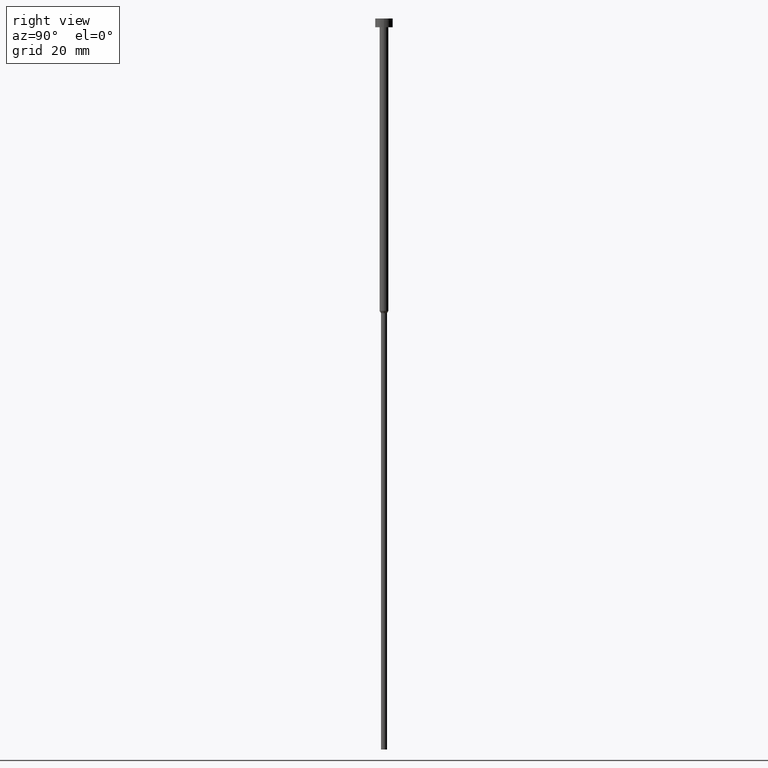
[diagram: clean part render]
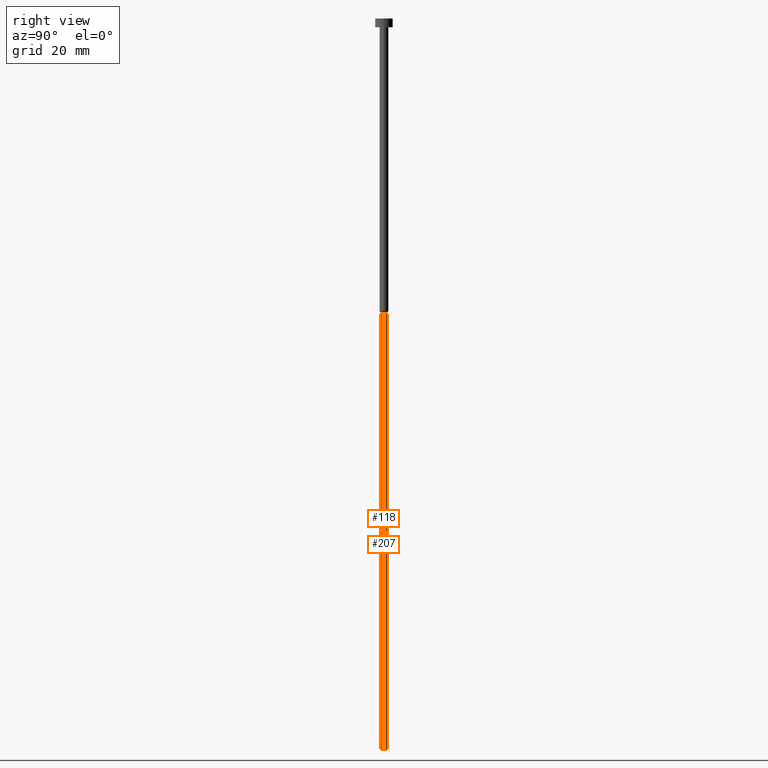
[diagram: same view with one multi-face feature highlighted, each face labeled with its STEP entity id]
A machine part, right view. The highlighted faces form ONE feature: a constant-radius fillet chain: 2 tangent blend faces with common blend radius 1.05 mm. The faces share edges in the B-rep.
Their STEP definitions:
[1] entity #207 (Cylinder):
#17 = VERTEX_POINT ( 'NONE', #215 ) ;
#38 = CARTESIAN_POINT ( 'NONE',  ( -1.050000000000000044, 1.285879139104720978E-16, -100.7794228634059976 ) ) ;
#40 = AXIS2_PLACEMENT_3D ( 'NONE', #349, #106, #188 ) ;
#43 = CARTESIAN_POINT ( 'NONE',  ( -1.050000000000000044, 1.285879139104720978E-16, -250.0000000000000000 ) ) ;
#44 = CIRCLE ( 'NONE', #288, 1.050000000000000044 ) ;
#62 = VERTEX_POINT ( 'NONE', #38 ) ;
#72 = CYLINDRICAL_SURFACE ( 'NONE', #328, 1.050000000000000044 ) ;
#83 = VERTEX_POINT ( 'NONE', #340 ) ;
#95 = LINE ( 'NONE', #312, #138 ) ;
#106 = DIRECTION ( 'NONE',  ( -0.000000000000000000, -0.000000000000000000, 1.000000000000000000 ) ) ;
#108 = EDGE_CURVE ( 'NONE', #133, #62, #95, .T. ) ;
#109 = EDGE_LOOP ( 'NONE', ( #276, #116, #326, #111 ) ) ;
#111 = ORIENTED_EDGE ( 'NONE', *, *, #130, .F. ) ;
#116 = ORIENTED_EDGE ( 'NONE', *, *, #108, .T. ) ;
#119 = DIRECTION ( 'NONE',  ( -0.000000000000000000, -0.000000000000000000, 1.000000000000000000 ) ) ;
#130 = EDGE_CURVE ( 'NONE', #83, #17, #284, .T. ) ;
#133 = VERTEX_POINT ( 'NONE', #43 ) ;
#138 = VECTOR ( 'NONE', #174, 1000.000000000000000 ) ;
#144 = CARTESIAN_POINT ( 'NONE',  ( 1.050000000000000044, 0.000000000000000000, 0.000000000000000000 ) ) ;
#153 = DIRECTION ( 'NONE',  ( -0.000000000000000000, -0.000000000000000000, 1.000000000000000000 ) ) ;
#156 = FACE_OUTER_BOUND ( 'NONE', #109, .T. ) ;
#174 = DIRECTION ( 'NONE',  ( -0.000000000000000000, -0.000000000000000000, 1.000000000000000000 ) ) ;
#188 = DIRECTION ( 'NONE',  ( 1.000000000000000000, 0.000000000000000000, 0.000000000000000000 ) ) ;
#207 = ADVANCED_FACE ( 'NONE', ( #156 ), #72, .T. ) ;
#215 = CARTESIAN_POINT ( 'NONE',  ( 1.050000000000000044, 0.000000000000000000, -100.7794228634059976 ) ) ;
#234 = CARTESIAN_POINT ( 'NONE',  ( 0.000000000000000000, 0.000000000000000000, -100.7794228634059976 ) ) ;
#239 = DIRECTION ( 'NONE',  ( -0.000000000000000000, -0.000000000000000000, 1.000000000000000000 ) ) ;
#265 = CARTESIAN_POINT ( 'NONE',  ( 0.000000000000000000, 0.000000000000000000, 0.000000000000000000 ) ) ;
#268 = DIRECTION ( 'NONE',  ( 1.000000000000000000, 0.000000000000000000, 0.000000000000000000 ) ) ;
#276 = ORIENTED_EDGE ( 'NONE', *, *, #330, .T. ) ;
#284 = LINE ( 'NONE', #144, #286 ) ;
#286 = VECTOR ( 'NONE', #119, 1000.000000000000000 ) ;
#288 = AXIS2_PLACEMENT_3D ( 'NONE', #234, #153, #316 ) ;
#300 = EDGE_CURVE ( 'NONE', #17, #62, #44, .T. ) ;
#312 = CARTESIAN_POINT ( 'NONE',  ( -1.050000000000000044, 1.285879139104720978E-16, 0.000000000000000000 ) ) ;
#316 = DIRECTION ( 'NONE',  ( 1.000000000000000000, 0.000000000000000000, 0.000000000000000000 ) ) ;
#326 = ORIENTED_EDGE ( 'NONE', *, *, #300, .F. ) ;
#328 = AXIS2_PLACEMENT_3D ( 'NONE', #265, #239, #268 ) ;
#330 = EDGE_CURVE ( 'NONE', #83, #133, #341, .T. ) ;
#340 = CARTESIAN_POINT ( 'NONE',  ( 1.050000000000000044, 0.000000000000000000, -250.0000000000000000 ) ) ;
#341 = CIRCLE ( 'NONE', #40, 1.050000000000000044 ) ;
#349 = CARTESIAN_POINT ( 'NONE',  ( 0.000000000000000000, 0.000000000000000000, -250.0000000000000000 ) ) ;
[2] entity #118 (Cylinder):
#17 = VERTEX_POINT ( 'NONE', #215 ) ;
#21 = CARTESIAN_POINT ( 'NONE',  ( 0.000000000000000000, 0.000000000000000000, -250.0000000000000000 ) ) ;
#38 = CARTESIAN_POINT ( 'NONE',  ( -1.050000000000000044, 1.285879139104720978E-16, -100.7794228634059976 ) ) ;
#39 = AXIS2_PLACEMENT_3D ( 'NONE', #338, #289, #342 ) ;
#41 = CARTESIAN_POINT ( 'NONE',  ( 0.000000000000000000, 0.000000000000000000, -100.7794228634059976 ) ) ;
#43 = CARTESIAN_POINT ( 'NONE',  ( -1.050000000000000044, 1.285879139104720978E-16, -250.0000000000000000 ) ) ;
#54 = ORIENTED_EDGE ( 'NONE', *, *, #130, .T. ) ;
#62 = VERTEX_POINT ( 'NONE', #38 ) ;
#78 = CIRCLE ( 'NONE', #224, 1.050000000000000044 ) ;
#83 = VERTEX_POINT ( 'NONE', #340 ) ;
#95 = LINE ( 'NONE', #312, #138 ) ;
#104 = DIRECTION ( 'NONE',  ( -0.000000000000000000, -0.000000000000000000, 1.000000000000000000 ) ) ;
#108 = EDGE_CURVE ( 'NONE', #133, #62, #95, .T. ) ;
#114 = EDGE_CURVE ( 'NONE', #62, #17, #78, .T. ) ;
#118 = ADVANCED_FACE ( 'NONE', ( #256 ), #343, .T. ) ;
#119 = DIRECTION ( 'NONE',  ( -0.000000000000000000, -0.000000000000000000, 1.000000000000000000 ) ) ;
#130 = EDGE_CURVE ( 'NONE', #83, #17, #284, .T. ) ;
#133 = VERTEX_POINT ( 'NONE', #43 ) ;
#138 = VECTOR ( 'NONE', #174, 1000.000000000000000 ) ;
#144 = CARTESIAN_POINT ( 'NONE',  ( 1.050000000000000044, 0.000000000000000000, 0.000000000000000000 ) ) ;
#146 = DIRECTION ( 'NONE',  ( 1.000000000000000000, 0.000000000000000000, 0.000000000000000000 ) ) ;
#160 = ORIENTED_EDGE ( 'NONE', *, *, #108, .F. ) ;
#162 = AXIS2_PLACEMENT_3D ( 'NONE', #21, #104, #212 ) ;
#174 = DIRECTION ( 'NONE',  ( -0.000000000000000000, -0.000000000000000000, 1.000000000000000000 ) ) ;
#179 = DIRECTION ( 'NONE',  ( -0.000000000000000000, -0.000000000000000000, 1.000000000000000000 ) ) ;
#183 = CIRCLE ( 'NONE', #162, 1.050000000000000044 ) ;
#212 = DIRECTION ( 'NONE',  ( 1.000000000000000000, 0.000000000000000000, 0.000000000000000000 ) ) ;
#213 = EDGE_CURVE ( 'NONE', #133, #83, #183, .T. ) ;
#215 = CARTESIAN_POINT ( 'NONE',  ( 1.050000000000000044, 0.000000000000000000, -100.7794228634059976 ) ) ;
#222 = ORIENTED_EDGE ( 'NONE', *, *, #213, .T. ) ;
#224 = AXIS2_PLACEMENT_3D ( 'NONE', #41, #179, #146 ) ;
#256 = FACE_OUTER_BOUND ( 'NONE', #331, .T. ) ;
#284 = LINE ( 'NONE', #144, #286 ) ;
#286 = VECTOR ( 'NONE', #119, 1000.000000000000000 ) ;
#289 = DIRECTION ( 'NONE',  ( -0.000000000000000000, -0.000000000000000000, 1.000000000000000000 ) ) ;
#309 = ORIENTED_EDGE ( 'NONE', *, *, #114, .F. ) ;
#312 = CARTESIAN_POINT ( 'NONE',  ( -1.050000000000000044, 1.285879139104720978E-16, 0.000000000000000000 ) ) ;
#331 = EDGE_LOOP ( 'NONE', ( #160, #222, #54, #309 ) ) ;
#338 = CARTESIAN_POINT ( 'NONE',  ( 0.000000000000000000, 0.000000000000000000, 0.000000000000000000 ) ) ;
#340 = CARTESIAN_POINT ( 'NONE',  ( 1.050000000000000044, 0.000000000000000000, -250.0000000000000000 ) ) ;
#342 = DIRECTION ( 'NONE',  ( 1.000000000000000000, 0.000000000000000000, 0.000000000000000000 ) ) ;
#343 = CYLINDRICAL_SURFACE ( 'NONE', #39, 1.050000000000000044 ) ;